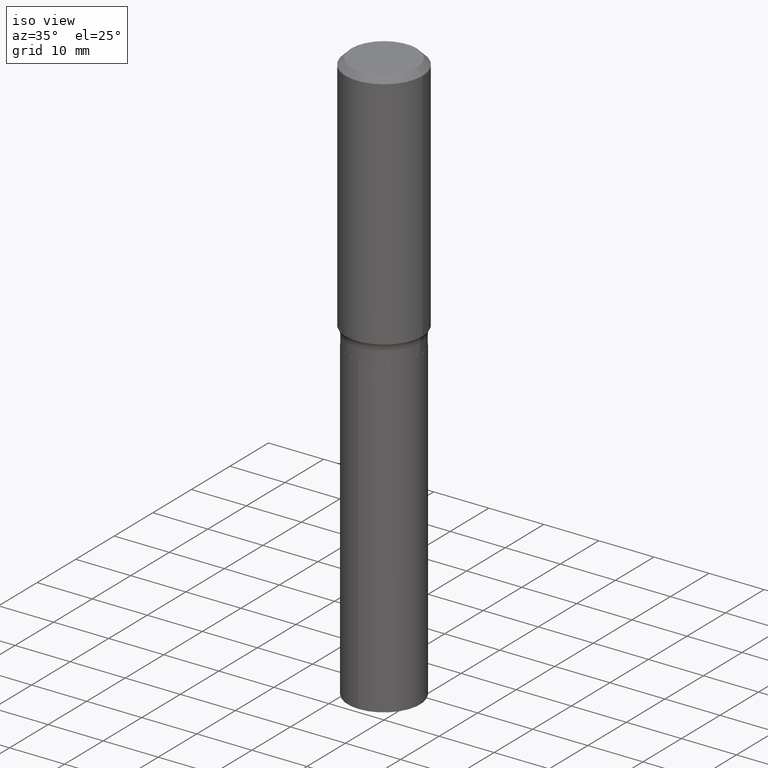
[diagram: clean part render]
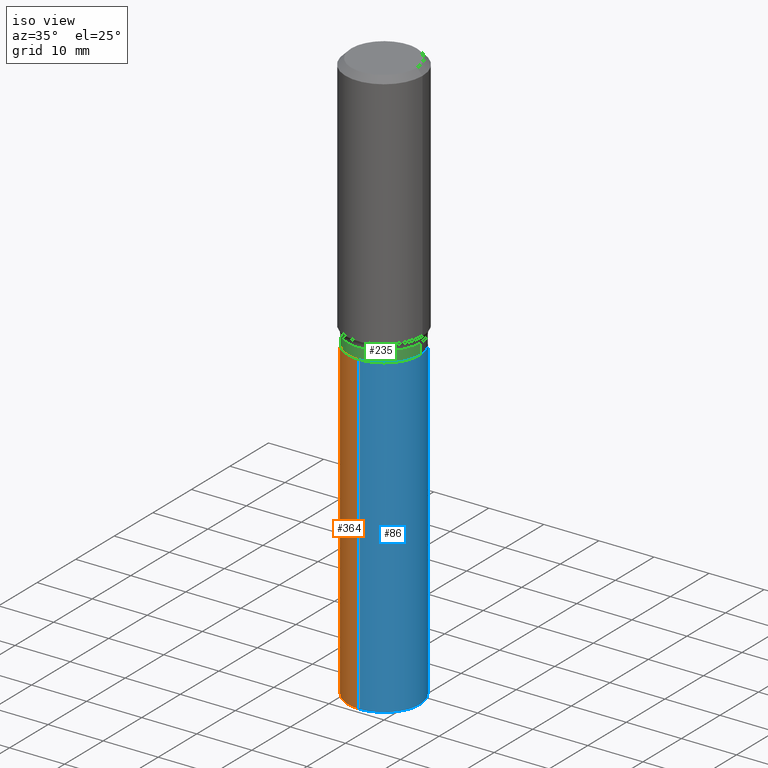
[diagram: same view with three faces highlighted in distinct colors, each labeled with its STEP entity id]
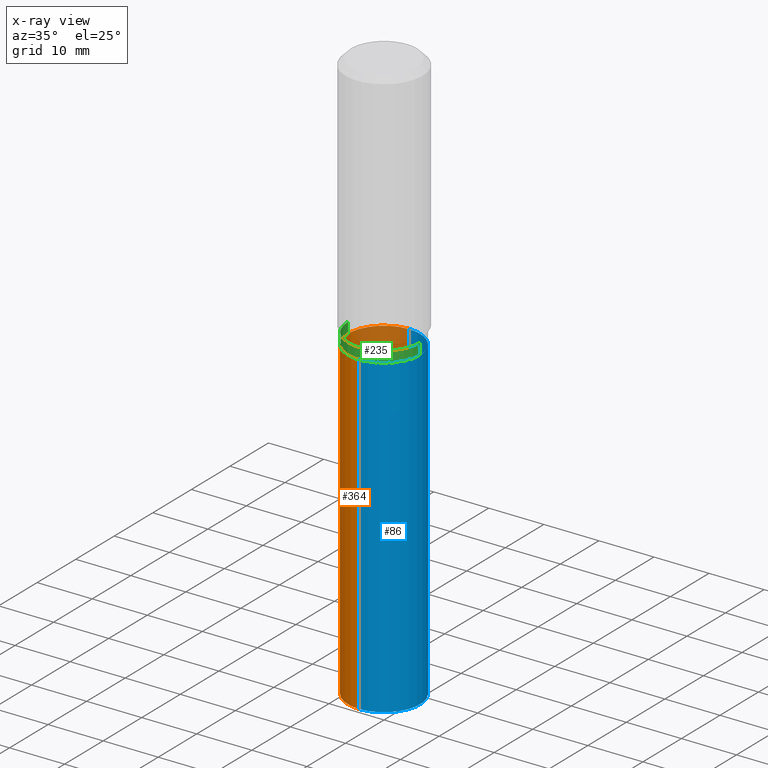
[diagram: x-ray of the same camera — body ghosted, the three highlighted faces saturated]
A machine part, iso view with three faces highlighted in distinct colors.
The next image is the same camera in x-ray (body ghosted, the three faces saturated) — at least one of them is partly hidden behind the body in this view.
Their STEP definitions:

[orange] entity #364 — the highlighted cylindrical surface (partial cylindrical patch) has radius 6.5481 mm, axis along (-0, 0, 1).
#13 = CARTESIAN_POINT ( 'NONE',  ( 1.831779172789583057E-15, 0.2577999999999935343, -1.850400000000001377 ) ) ;
#14 = VECTOR ( 'NONE', #120, 39.37007874015748143 ) ;
#28 = VERTEX_POINT ( 'NONE', #122 ) ;
#29 = DIRECTION ( 'NONE',  ( -2.445479514057623274E-29, 3.491466004560290354E-15, 1.000000000000000000 ) ) ;
#31 = EDGE_LOOP ( 'NONE', ( #330, #32, #111, #218 ) ) ;
#32 = ORIENTED_EDGE ( 'NONE', *, *, #102, .T. ) ;
#55 = LINE ( 'NONE', #13, #163 ) ;
#77 = DIRECTION ( 'NONE',  ( -6.982962677686265922E-15, -1.000000000000000000, 4.238709066973255853E-15 ) ) ;
#84 = CARTESIAN_POINT ( 'NONE',  ( -1.800207778307474202E-15, -0.2578000000000064129, -1.850399999999999823 ) ) ;
#91 = CARTESIAN_POINT ( 'NONE',  ( 1.831779172789638672E-15, 0.2577999999999935343, -1.850400000000001155 ) ) ;
#101 = CIRCLE ( 'NONE', #380, 0.2577999999999999736 ) ;
#102 = EDGE_CURVE ( 'NONE', #28, #209, #274, .T. ) ;
#106 = EDGE_CURVE ( 'NONE', #209, #177, #278, .T. ) ;
#110 = FACE_OUTER_BOUND ( 'NONE', #31, .T. ) ;
#111 = ORIENTED_EDGE ( 'NONE', *, *, #106, .T. ) ;
#120 = DIRECTION ( 'NONE',  ( -2.445479514057622994E-29, 3.491466004560290748E-15, 1.000000000000000000 ) ) ;
#122 = CARTESIAN_POINT ( 'NONE',  ( 1.831779172789637488E-15, 0.2577999999999855962, -4.108442038979699618 ) ) ;
#126 = DIRECTION ( 'NONE',  ( -2.445479514057622994E-29, 3.491466004560290748E-15, 1.000000000000000000 ) ) ;
#137 = DIRECTION ( 'NONE',  ( -2.445479514057623274E-29, 3.491466004560290354E-15, 1.000000000000000000 ) ) ;
#142 = DIRECTION ( 'NONE',  ( -6.982962677686265922E-15, -1.000000000000000000, 3.179031800229941890E-15 ) ) ;
#163 = VECTOR ( 'NONE', #126, 39.37007874015748143 ) ;
#177 = VERTEX_POINT ( 'NONE', #389 ) ;
#179 = DIRECTION ( 'NONE',  ( -6.982962677686265922E-15, -1.000000000000000000, 3.179031800229941890E-15 ) ) ;
#209 = VERTEX_POINT ( 'NONE', #426 ) ;
#218 = ORIENTED_EDGE ( 'NONE', *, *, #476, .F. ) ;
#222 = CARTESIAN_POINT ( 'NONE',  ( 4.525095478964977394E-29, -6.460637069395357576E-15, -1.850400000000000267 ) ) ;
#258 = EDGE_CURVE ( 'NONE', #28, #298, #55, .T. ) ;
#271 = DIRECTION ( 'NONE',  ( -2.445479514057623274E-29, 3.491466004560290354E-15, 1.000000000000000000 ) ) ;
#274 = CIRCLE ( 'NONE', #457, 0.2577999999999999736 ) ;
#278 = LINE ( 'NONE', #84, #14 ) ;
#298 = VERTEX_POINT ( 'NONE', #91 ) ;
#330 = ORIENTED_EDGE ( 'NONE', *, *, #258, .F. ) ;
#357 = AXIS2_PLACEMENT_3D ( 'NONE', #485, #137, #179 ) ;
#364 = ADVANCED_FACE ( 'NONE', ( #110 ), #433, .T. ) ;
#380 = AXIS2_PLACEMENT_3D ( 'NONE', #222, #29, #142 ) ;
#383 = CARTESIAN_POINT ( 'NONE',  ( 1.004709102717073275E-28, -1.434451408536097576E-14, -4.108442038979697841 ) ) ;
#389 = CARTESIAN_POINT ( 'NONE',  ( -1.800207778307474202E-15, -0.2578000000000064129, -1.850399999999999379 ) ) ;
#426 = CARTESIAN_POINT ( 'NONE',  ( -1.800207778307418587E-15, -0.2578000000000142400, -4.108442038979696953 ) ) ;
#433 = CYLINDRICAL_SURFACE ( 'NONE', #357, 0.2577999999999999736 ) ;
#457 = AXIS2_PLACEMENT_3D ( 'NONE', #383, #271, #77 ) ;
#476 = EDGE_CURVE ( 'NONE', #298, #177, #101, .T. ) ;
#485 = CARTESIAN_POINT ( 'NONE',  ( 4.525095478964977954E-29, -6.460637069395358365E-15, -1.850400000000000489 ) ) ;

[blue] entity #86 — the highlighted cylindrical surface (partial cylindrical patch) has radius 6.5481 mm, axis along (-0, 0, 1).
#4 = ORIENTED_EDGE ( 'NONE', *, *, #441, .F. ) ;
#13 = CARTESIAN_POINT ( 'NONE',  ( 1.831779172789583057E-15, 0.2577999999999935343, -1.850400000000001377 ) ) ;
#14 = VECTOR ( 'NONE', #120, 39.37007874015748143 ) ;
#28 = VERTEX_POINT ( 'NONE', #122 ) ;
#55 = LINE ( 'NONE', #13, #163 ) ;
#62 = ORIENTED_EDGE ( 'NONE', *, *, #187, .T. ) ;
#84 = CARTESIAN_POINT ( 'NONE',  ( -1.800207778307474202E-15, -0.2578000000000064129, -1.850399999999999823 ) ) ;
#86 = ADVANCED_FACE ( 'NONE', ( #234 ), #118, .T. ) ;
#91 = CARTESIAN_POINT ( 'NONE',  ( 1.831779172789638672E-15, 0.2577999999999935343, -1.850400000000001155 ) ) ;
#106 = EDGE_CURVE ( 'NONE', #209, #177, #278, .T. ) ;
#118 = CYLINDRICAL_SURFACE ( 'NONE', #224, 0.2577999999999999736 ) ;
#120 = DIRECTION ( 'NONE',  ( -2.445479514057622994E-29, 3.491466004560290748E-15, 1.000000000000000000 ) ) ;
#122 = CARTESIAN_POINT ( 'NONE',  ( 1.831779172789637488E-15, 0.2577999999999855962, -4.108442038979699618 ) ) ;
#126 = DIRECTION ( 'NONE',  ( -2.445479514057622994E-29, 3.491466004560290748E-15, 1.000000000000000000 ) ) ;
#139 = DIRECTION ( 'NONE',  ( -2.445479514057623274E-29, 3.491466004560290354E-15, 1.000000000000000000 ) ) ;
#163 = VECTOR ( 'NONE', #126, 39.37007874015748143 ) ;
#169 = DIRECTION ( 'NONE',  ( -6.982962677686265922E-15, -1.000000000000000000, 4.238709066973255853E-15 ) ) ;
#177 = VERTEX_POINT ( 'NONE', #389 ) ;
#187 = EDGE_CURVE ( 'NONE', #209, #28, #379, .T. ) ;
#207 = CARTESIAN_POINT ( 'NONE',  ( 1.004709102717073275E-28, -1.434451408536097576E-14, -4.108442038979697841 ) ) ;
#209 = VERTEX_POINT ( 'NONE', #426 ) ;
#210 = CIRCLE ( 'NONE', #484, 0.2577999999999999736 ) ;
#216 = AXIS2_PLACEMENT_3D ( 'NONE', #207, #244, #169 ) ;
#224 = AXIS2_PLACEMENT_3D ( 'NONE', #229, #311, #460 ) ;
#229 = CARTESIAN_POINT ( 'NONE',  ( 4.525095478964977954E-29, -6.460637069395358365E-15, -1.850400000000000489 ) ) ;
#234 = FACE_OUTER_BOUND ( 'NONE', #293, .T. ) ;
#244 = DIRECTION ( 'NONE',  ( -2.445479514057623274E-29, 3.491466004560290354E-15, 1.000000000000000000 ) ) ;
#258 = EDGE_CURVE ( 'NONE', #28, #298, #55, .T. ) ;
#278 = LINE ( 'NONE', #84, #14 ) ;
#293 = EDGE_LOOP ( 'NONE', ( #62, #442, #4, #373 ) ) ;
#298 = VERTEX_POINT ( 'NONE', #91 ) ;
#311 = DIRECTION ( 'NONE',  ( -2.445479514057623274E-29, 3.491466004560290354E-15, 1.000000000000000000 ) ) ;
#327 = DIRECTION ( 'NONE',  ( -6.982962677686265922E-15, -1.000000000000000000, 3.179031800229941890E-15 ) ) ;
#360 = CARTESIAN_POINT ( 'NONE',  ( 4.525095478964977394E-29, -6.460637069395357576E-15, -1.850400000000000267 ) ) ;
#373 = ORIENTED_EDGE ( 'NONE', *, *, #106, .F. ) ;
#379 = CIRCLE ( 'NONE', #216, 0.2577999999999999736 ) ;
#389 = CARTESIAN_POINT ( 'NONE',  ( -1.800207778307474202E-15, -0.2578000000000064129, -1.850399999999999379 ) ) ;
#426 = CARTESIAN_POINT ( 'NONE',  ( -1.800207778307418587E-15, -0.2578000000000142400, -4.108442038979696953 ) ) ;
#441 = EDGE_CURVE ( 'NONE', #177, #298, #210, .T. ) ;
#442 = ORIENTED_EDGE ( 'NONE', *, *, #258, .T. ) ;
#460 = DIRECTION ( 'NONE',  ( -6.982962677686265922E-15, -1.000000000000000000, 3.179031800229941890E-15 ) ) ;
#484 = AXIS2_PLACEMENT_3D ( 'NONE', #360, #139, #327 ) ;

[green] entity #235 — the highlighted cylindrical surface (partial cylindrical patch) has radius 6.5481 mm, axis along (-0, 0, 1).
#1 = DIRECTION ( 'NONE',  ( 1.000000000000000000, -6.982962677686267499E-15, 0.000000000000000000 ) ) ;
#7 = AXIS2_PLACEMENT_3D ( 'NONE', #192, #489, #1 ) ;
#18 = DIRECTION ( 'NONE',  ( 1.000000000000000000, -6.982962677686267499E-15, 0.000000000000000000 ) ) ;
#21 = DIRECTION ( 'NONE',  ( -2.445468806185136877E-29, 3.491481338843145188E-15, 1.000000000000000000 ) ) ;
#57 = CARTESIAN_POINT ( 'NONE',  ( 0.000000000000000000, 0.000000000000000000, 0.000000000000000000 ) ) ;
#81 = CIRCLE ( 'NONE', #186, 0.2577999999999999736 ) ;
#93 = ORIENTED_EDGE ( 'NONE', *, *, #283, .F. ) ;
#94 = EDGE_CURVE ( 'NONE', #461, #297, #464, .T. ) ;
#97 = DIRECTION ( 'NONE',  ( -2.445468806185136597E-29, 3.491481338843145583E-15, 1.000000000000000000 ) ) ;
#103 = VERTEX_POINT ( 'NONE', #199 ) ;
#127 = CARTESIAN_POINT ( 'NONE',  ( 0.2577999999999999736, -7.990953340210303613E-15, -1.773100000000000565 ) ) ;
#147 = CARTESIAN_POINT ( 'NONE',  ( 0.2577999999999999736, -1.800207778307519561E-15, 1.257078372800192065E-29 ) ) ;
#168 = DIRECTION ( 'NONE',  ( 1.000000000000000000, -6.982962677686267499E-15, 4.876176775795935793E-29 ) ) ;
#172 = CYLINDRICAL_SURFACE ( 'NONE', #356, 0.2577999999999999736 ) ;
#174 = LINE ( 'NONE', #147, #287 ) ;
#186 = AXIS2_PLACEMENT_3D ( 'NONE', #296, #97, #18 ) ;
#192 = CARTESIAN_POINT ( 'NONE',  ( 4.523872744561885153E-29, -6.458891328725936072E-15, -1.849900000000000322 ) ) ;
#193 = VERTEX_POINT ( 'NONE', #127 ) ;
#199 = CARTESIAN_POINT ( 'NONE',  ( -0.2577999999999999736, -4.493039272524821379E-15, -1.773100000000000565 ) ) ;
#208 = LINE ( 'NONE', #355, #286 ) ;
#230 = ORIENTED_EDGE ( 'NONE', *, *, #94, .T. ) ;
#235 = ADVANCED_FACE ( 'NONE', ( #463 ), #172, .T. ) ;
#283 = EDGE_CURVE ( 'NONE', #461, #103, #208, .T. ) ;
#286 = VECTOR ( 'NONE', #462, 39.37007874015748143 ) ;
#287 = VECTOR ( 'NONE', #21, 39.37007874015748143 ) ;
#296 = CARTESIAN_POINT ( 'NONE',  ( 4.336060740246867168E-29, -6.190745561902783658E-15, -1.773100000000000565 ) ) ;
#297 = VERTEX_POINT ( 'NONE', #468 ) ;
#314 = ORIENTED_EDGE ( 'NONE', *, *, #393, .F. ) ;
#346 = EDGE_CURVE ( 'NONE', #297, #193, #174, .T. ) ;
#351 = DIRECTION ( 'NONE',  ( -2.445468806185136597E-29, 3.491481338843145583E-15, 1.000000000000000000 ) ) ;
#355 = CARTESIAN_POINT ( 'NONE',  ( -0.2577999999999999736, 1.831779172789538092E-15, -1.268101466267714686E-29 ) ) ;
#356 = AXIS2_PLACEMENT_3D ( 'NONE', #57, #351, #168 ) ;
#393 = EDGE_CURVE ( 'NONE', #103, #193, #81, .T. ) ;
#397 = CARTESIAN_POINT ( 'NONE',  ( -0.2577999999999999736, -4.493039272524821379E-15, -1.849900000000000322 ) ) ;
#437 = ORIENTED_EDGE ( 'NONE', *, *, #346, .T. ) ;
#461 = VERTEX_POINT ( 'NONE', #397 ) ;
#462 = DIRECTION ( 'NONE',  ( -2.445468806185136877E-29, 3.491481338843145188E-15, 1.000000000000000000 ) ) ;
#463 = FACE_OUTER_BOUND ( 'NONE', #467, .T. ) ;
#464 = CIRCLE ( 'NONE', #7, 0.2577999999999999736 ) ;
#467 = EDGE_LOOP ( 'NONE', ( #93, #230, #437, #314 ) ) ;
#468 = CARTESIAN_POINT ( 'NONE',  ( 0.2577999999999999736, -8.259099107033456028E-15, -1.849900000000000322 ) ) ;
#489 = DIRECTION ( 'NONE',  ( -2.445468806185136597E-29, 3.491481338843145583E-15, 1.000000000000000000 ) ) ;